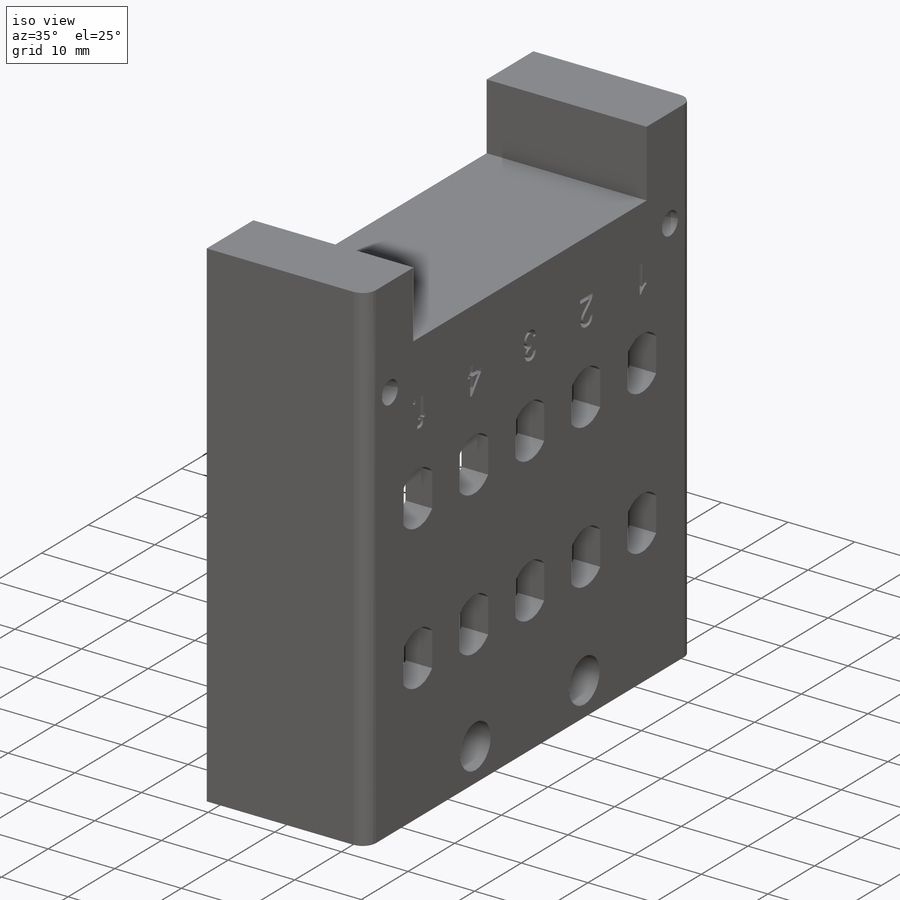
[diagram: iso view]
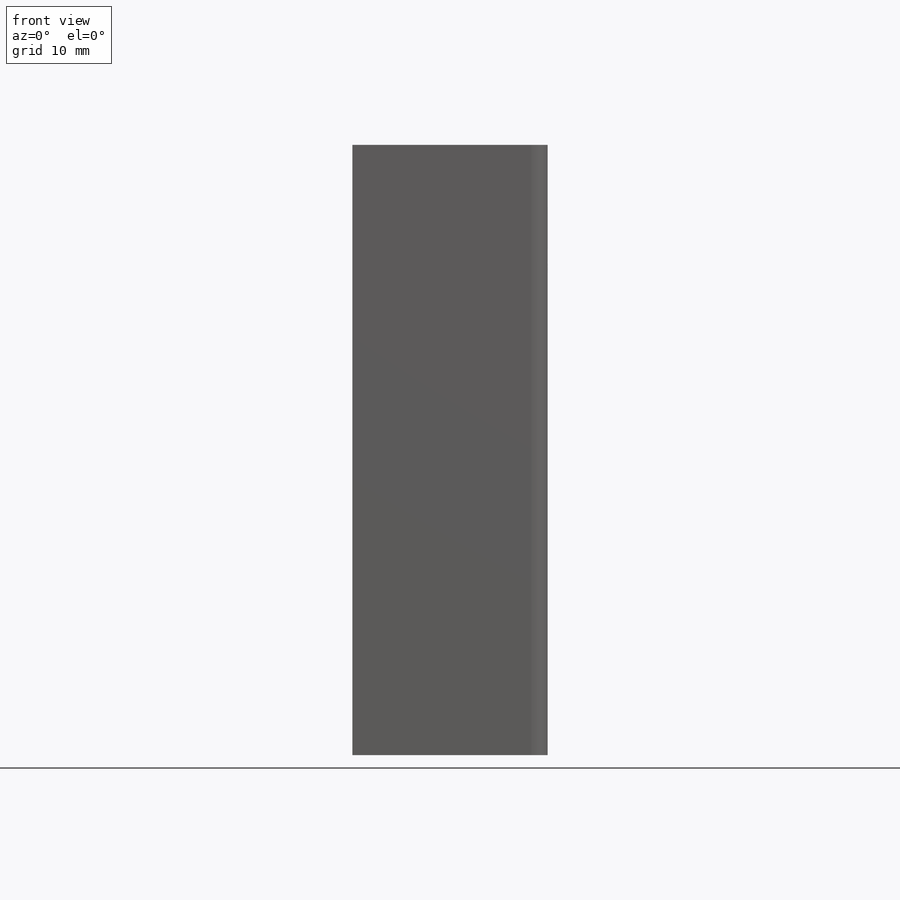
[diagram: front view]
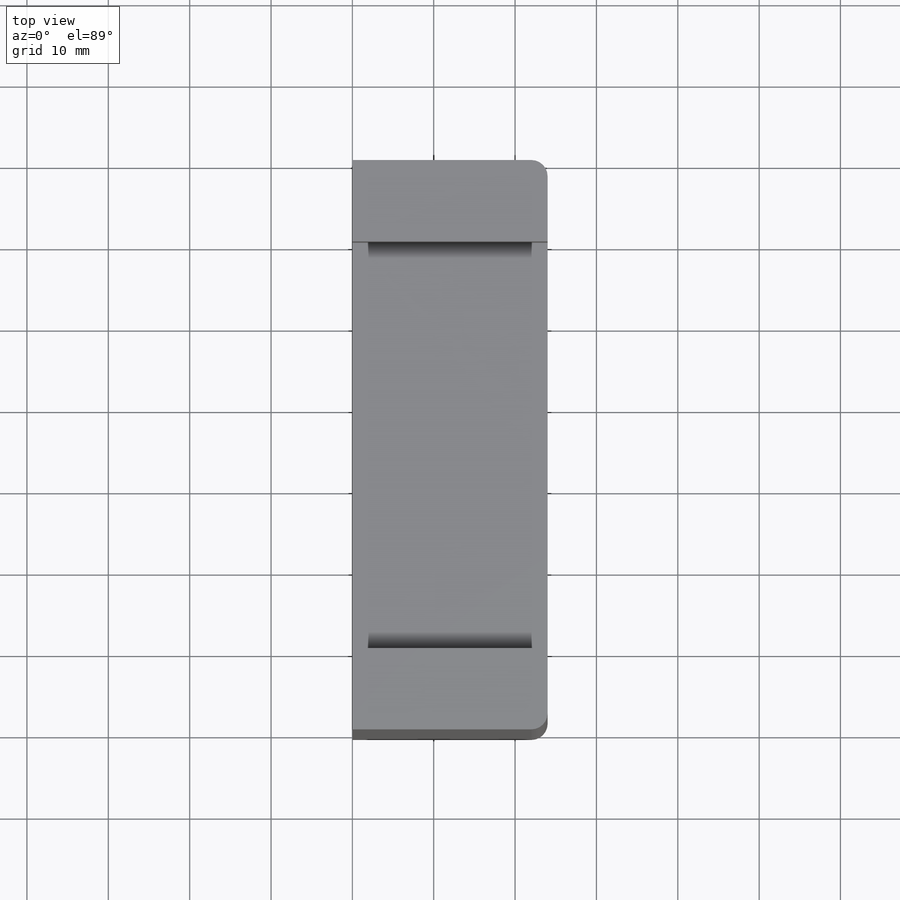
[diagram: top view]
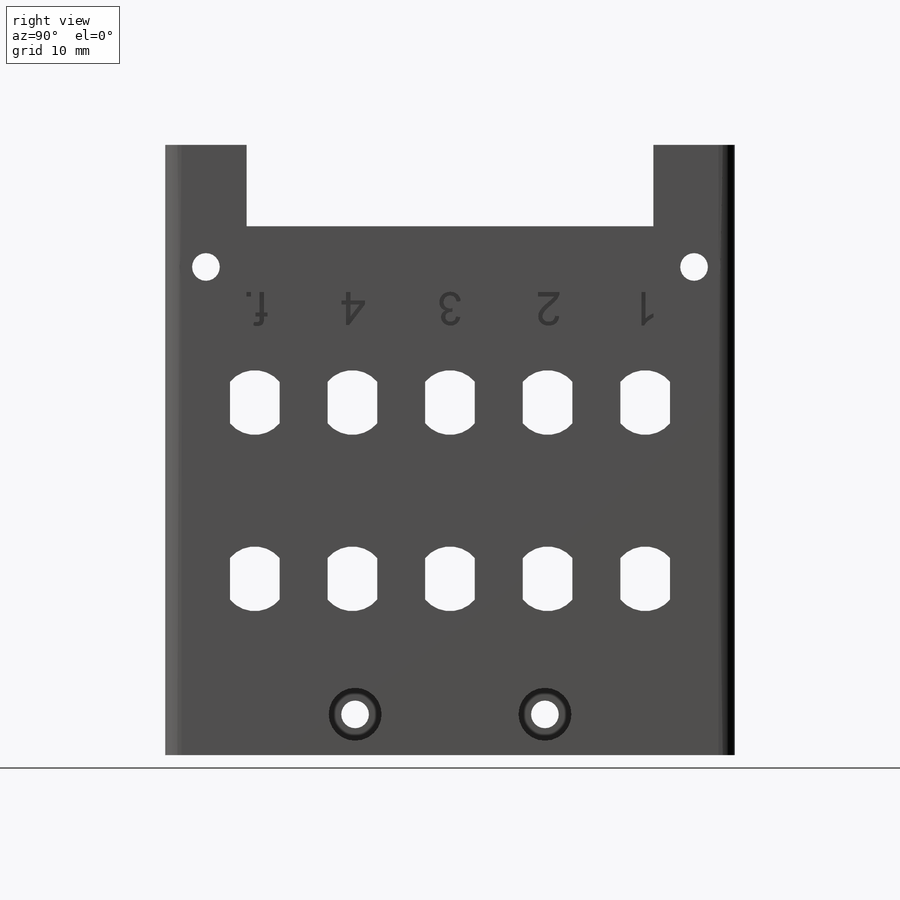
[diagram: right view]
SOLIDWORKS PART (.sldprt)
format: sldprt  version: not decoded by parser v0  size: 688,128 bytes
history: native  units: mm
features: sketch x18, extrude x6, cut_extrude x5, fillet x3, hole x2, material x1 (+11 scaffold rows collapsed)
feature tree (46):
  scaffold x11  (default folders/planes/origin — collapsed)
  material  "Material <not specified>"
  sketch  "Sketch1"  dims[D1=65.0mm D2=70.0mm]
  extrude  "Boss-Extrude1"  Depth=24mm
  sketch  "Sketch2"  dims[D1=5.0mm D2=5.0mm D3=5.0mm D4=5.0mm]
  cut_extrude  "Cut-Extrude1"  Depth=20mm
  sketch  "Sketch4"  dims[c1.D2=7.95mm c1.D7=7.95mm c1.D1=6.1mm c1.D3=3.05mm c1.D4=11.0mm c1.D6=~21.666667mm c2.D7=~35.318386mm c2.D8=6.1mm c2.D9=3.05mm c2.D10=12.0mm c2.D11=12.0mm c2.D12=12.0mm c2.D13=12.0mm c2.D14=11.0mm c2.D15=~21.666667mm c2.D5=5.0]
  cut_extrude  "Cut-Extrude2"  [1 undecoded]
  sketch  "Sketch5"  dims[D1=5.0mm D2=5.0mm D3=4.0mm]
  cut_extrude  "Cut-Extrude3"  Depth=20mm
  sketch  "Sketch6"  dims[D1=10.0mm D2=10.0mm D3=~23.333333mm D4=~23.333333mm D5=5.0mm D6=~23.335764mm]
  extrude  "Boss-Extrude3"  [1 undecoded]
  fillet  "Fillet1"  Radius=1mm
  sketch  "Sketch8"  dims[D1=10.0mm]
  extrude  "Boss-Extrude5"  Depth=5mm
  sketch  "Sketch9"  dims[D1=10.0mm]
  extrude  "Boss-Extrude6"  Depth=5mm
  sketch  "Sketch10"  dims[D1=5.0mm D2=~23.333333mm D3=~23.333333mm D4=5.0mm D5=5.0mm D6=5.0mm]
  hole  "CBORE for M3 SHCS1"  Diameter=3.4mm Depth=24mm
  sketch  "3DSketch1"
  sketch  "Sketch11"  dims[hole-wizard template sketch: 42 standard entries collapsed; hole parameters kept: c12.Thru Hole Depth=24.0mm c12.C'Bore Dia.=6.5mm c12.C'Bore Depth=20.0mm]
  sketch  "Sketch12"  dims[D1=10.0mm D2=10.0mm]
  extrude  "Boss-Extrude7"  Depth=10mm
  fillet  "Fillet3"  Radius=2mm
  sketch  "Sketch13"  dims[D1=5.0mm D2=5.0mm D3=5.0mm D4=5.0mm D5=5.0mm]
  hole  "Tap Drill for M3x0.5 Tap1"  Diameter=2.5mm Depth=10mm
  sketch  "3DSketch2"
  sketch  "Sketch15"  dims[hole-wizard template sketch: 50 standard entries collapsed; hole parameters above]
  sketch  "Sketch17"  dims[c1.D1=6.0mm c1.D2=6.0mm c1.D3=6.0mm c1.D4=0.0mm c1.D5=6.0mm c1.D6=~5.115626mm c2.D5=6.0mm c2.D6=6.0mm c2.D7=11.0mm]
  sketch  "Sketch18"
  cut_extrude  "Cut-Extrude4"  Depth=2mm
  sketch  "Sketch19"
  extrude  "Boss-Extrude8"  [1 undecoded]
  sketch  "Sketch21"  dims[c1.D1=~1.202082mm c2.D1=90.0deg]
  cut_extrude  "Cut-Extrude7"  Depth=5mm
  fillet  "Fillet4"  Radius=2mm
decode coverage: 27 of 34 modeling features carry decoded parameters
note: ~ marks probable driven/reference dimensions
note: 3 parameter values undecoded
summary: no parameter record found for 3 features
note: suppression state not decoded; provenance and decode notes live in map.json
